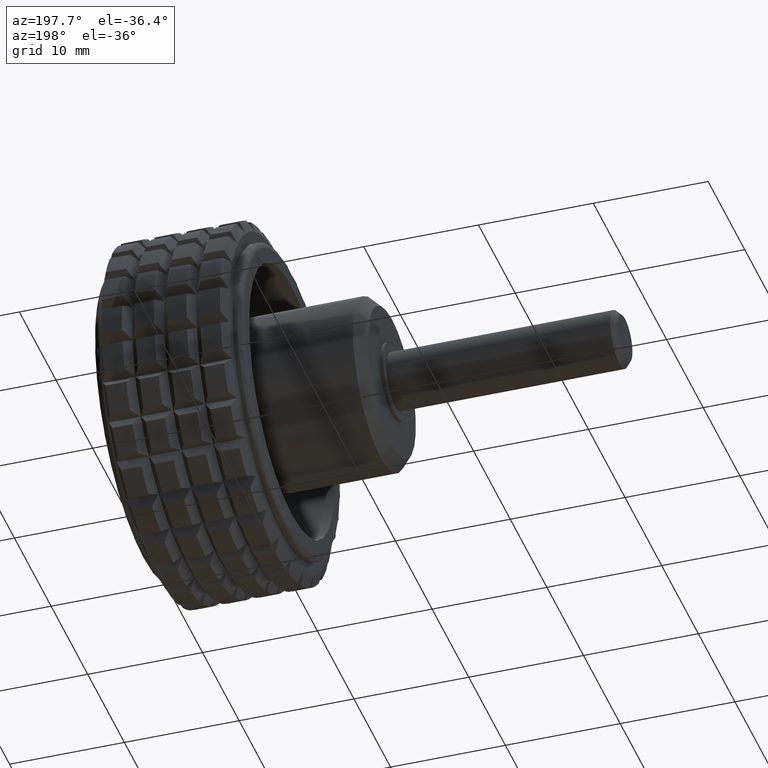
[diagram: clean part render]
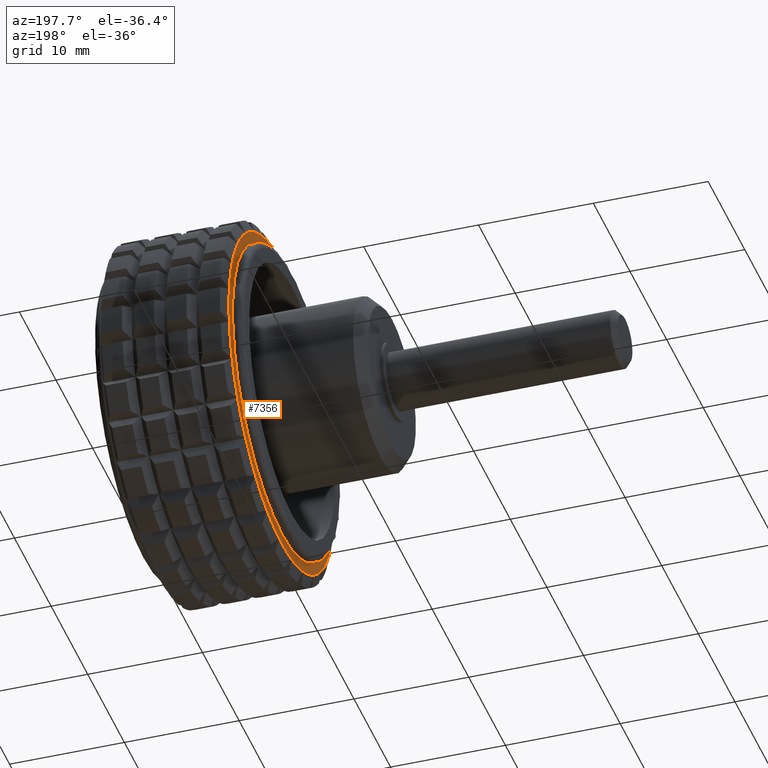
[diagram: same view with one face highlighted and labeled with its STEP entity id]
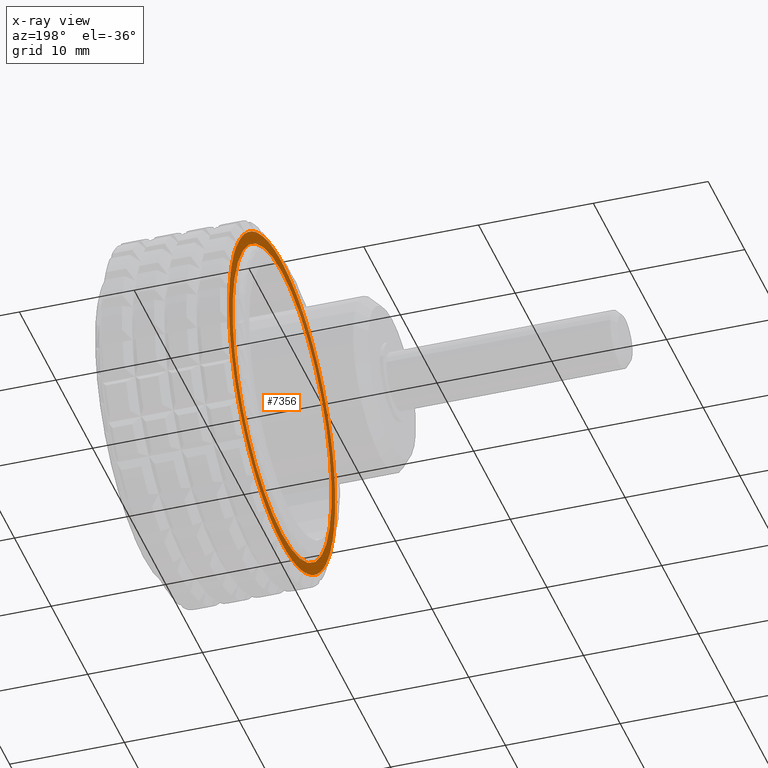
[diagram: x-ray of the same camera — body ghosted, the highlighted face saturated]
A machine part, auxiliary view. The second image highlights one B-rep face of the part: STEP entity #7356.
The next image is the same camera in x-ray: the body ghosted, the highlighted face saturated — about 18% of this face is hidden behind the body in this view.
In plain terms, the highlighted planar face has unit normal (1, 0, 0).
Its self-contained STEP definition (entity closure, byte-faithful):
#1446=FACE_BOUND('',#2213,.T.);
#1648=FACE_OUTER_BOUND('',#2212,.T.);
#2212=EDGE_LOOP('',(#5448,#5449,#5450,#5451,#5452,#5453,#5454,#5455,#5456,
#5457,#5458,#5459,#5460,#5461,#5462,#5463,#5464,#5465,#5466,#5467,#5468,
#5469,#5470,#5471,#5472,#5473,#5474));
#2213=EDGE_LOOP('',(#5475));
#2714=CIRCLE('',#8000,14.5);
#2727=CIRCLE('',#8029,14.5);
#2732=CIRCLE('',#8042,14.5);
#2733=CIRCLE('',#8044,14.5);
#2734=CIRCLE('',#8046,14.5);
#2736=CIRCLE('',#8049,14.5);
#2737=CIRCLE('',#8050,14.5);
#2738=CIRCLE('',#8051,14.5);
#2739=CIRCLE('',#8052,14.5);
#2740=CIRCLE('',#8053,14.5);
#2741=CIRCLE('',#8054,14.5);
#2742=CIRCLE('',#8055,14.5);
#2743=CIRCLE('',#8056,14.5);
#2744=CIRCLE('',#8057,14.5);
#2745=CIRCLE('',#8058,14.5);
#2746=CIRCLE('',#8059,14.5);
#2747=CIRCLE('',#8060,14.5);
#2748=CIRCLE('',#8061,14.5);
#2749=CIRCLE('',#8062,14.5);
#2750=CIRCLE('',#8063,14.5);
#2751=CIRCLE('',#8064,14.5);
#2752=CIRCLE('',#8065,14.5);
#2753=CIRCLE('',#8066,14.5);
#2754=CIRCLE('',#8067,14.5);
#2755=CIRCLE('',#8068,14.5);
#2756=CIRCLE('',#8069,14.5);
#2757=CIRCLE('',#8070,14.5);
#2758=CIRCLE('',#8071,13.5);
#3024=VERTEX_POINT('',#11068);
#3048=VERTEX_POINT('',#11184);
#3055=VERTEX_POINT('',#11231);
#3069=VERTEX_POINT('',#11293);
#3081=VERTEX_POINT('',#11353);
#3093=VERTEX_POINT('',#11404);
#3100=VERTEX_POINT('',#11436);
#3112=VERTEX_POINT('',#11485);
#3128=VERTEX_POINT('',#11558);
#3138=VERTEX_POINT('',#11602);
#3151=VERTEX_POINT('',#11661);
#3166=VERTEX_POINT('',#11727);
#3177=VERTEX_POINT('',#11782);
#3190=VERTEX_POINT('',#11838);
#3203=VERTEX_POINT('',#11897);
#3218=VERTEX_POINT('',#11963);
#3229=VERTEX_POINT('',#12015);
#3242=VERTEX_POINT('',#12074);
#3257=VERTEX_POINT('',#12140);
#3268=VERTEX_POINT('',#12192);
#3281=VERTEX_POINT('',#12251);
#3292=VERTEX_POINT('',#12302);
#3303=VERTEX_POINT('',#12354);
#3316=VERTEX_POINT('',#12413);
#3328=VERTEX_POINT('',#12471);
#3341=VERTEX_POINT('',#12543);
#3370=VERTEX_POINT('',#12748);
#3383=VERTEX_POINT('',#12847);
#4092=EDGE_CURVE('',#3069,#3081,#2714,.T.);
#4131=EDGE_CURVE('',#3055,#3024,#2727,.T.);
#4156=EDGE_CURVE('',#3316,#3370,#2732,.T.);
#4159=EDGE_CURVE('',#3100,#3069,#2733,.T.);
#4160=EDGE_CURVE('',#3024,#3048,#2734,.T.);
#4163=EDGE_CURVE('',#3048,#3328,#2736,.T.);
#4164=EDGE_CURVE('',#3341,#3055,#2737,.T.);
#4165=EDGE_CURVE('',#3370,#3341,#2738,.T.);
#4166=EDGE_CURVE('',#3303,#3316,#2739,.T.);
#4167=EDGE_CURVE('',#3281,#3303,#2740,.T.);
#4168=EDGE_CURVE('',#3268,#3281,#2741,.T.);
#4169=EDGE_CURVE('',#3242,#3268,#2742,.T.);
#4170=EDGE_CURVE('',#3229,#3242,#2743,.T.);
#4171=EDGE_CURVE('',#3203,#3229,#2744,.T.);
#4172=EDGE_CURVE('',#3190,#3203,#2745,.T.);
#4173=EDGE_CURVE('',#3177,#3190,#2746,.T.);
#4174=EDGE_CURVE('',#3151,#3177,#2747,.T.);
#4175=EDGE_CURVE('',#3138,#3151,#2748,.T.);
#4176=EDGE_CURVE('',#3112,#3138,#2749,.T.);
#4177=EDGE_CURVE('',#3093,#3112,#2750,.T.);
#4178=EDGE_CURVE('',#3081,#3093,#2751,.T.);
#4179=EDGE_CURVE('',#3128,#3100,#2752,.T.);
#4180=EDGE_CURVE('',#3166,#3128,#2753,.T.);
#4181=EDGE_CURVE('',#3218,#3166,#2754,.T.);
#4182=EDGE_CURVE('',#3257,#3218,#2755,.T.);
#4183=EDGE_CURVE('',#3292,#3257,#2756,.T.);
#4184=EDGE_CURVE('',#3328,#3292,#2757,.T.);
#4185=EDGE_CURVE('',#3383,#3383,#2758,.T.);
#5448=ORIENTED_EDGE('',*,*,#4163,.F.);
#5449=ORIENTED_EDGE('',*,*,#4160,.F.);
#5450=ORIENTED_EDGE('',*,*,#4131,.F.);
#5451=ORIENTED_EDGE('',*,*,#4164,.F.);
#5452=ORIENTED_EDGE('',*,*,#4165,.F.);
#5453=ORIENTED_EDGE('',*,*,#4156,.F.);
#5454=ORIENTED_EDGE('',*,*,#4166,.F.);
#5455=ORIENTED_EDGE('',*,*,#4167,.F.);
#5456=ORIENTED_EDGE('',*,*,#4168,.F.);
#5457=ORIENTED_EDGE('',*,*,#4169,.F.);
#5458=ORIENTED_EDGE('',*,*,#4170,.F.);
#5459=ORIENTED_EDGE('',*,*,#4171,.F.);
#5460=ORIENTED_EDGE('',*,*,#4172,.F.);
#5461=ORIENTED_EDGE('',*,*,#4173,.F.);
#5462=ORIENTED_EDGE('',*,*,#4174,.F.);
#5463=ORIENTED_EDGE('',*,*,#4175,.F.);
#5464=ORIENTED_EDGE('',*,*,#4176,.F.);
#5465=ORIENTED_EDGE('',*,*,#4177,.F.);
#5466=ORIENTED_EDGE('',*,*,#4178,.F.);
#5467=ORIENTED_EDGE('',*,*,#4092,.F.);
#5468=ORIENTED_EDGE('',*,*,#4159,.F.);
#5469=ORIENTED_EDGE('',*,*,#4179,.F.);
#5470=ORIENTED_EDGE('',*,*,#4180,.F.);
#5471=ORIENTED_EDGE('',*,*,#4181,.F.);
#5472=ORIENTED_EDGE('',*,*,#4182,.F.);
#5473=ORIENTED_EDGE('',*,*,#4183,.F.);
#5474=ORIENTED_EDGE('',*,*,#4184,.F.);
#5475=ORIENTED_EDGE('',*,*,#4185,.T.);
#7070=PLANE('',#8048);
#7356=ADVANCED_FACE('',(#1648,#1446),#7070,.F.);
#8000=AXIS2_PLACEMENT_3D('',#12614,#9386,#9387);
#8029=AXIS2_PLACEMENT_3D('',#12722,#9458,#9459);
#8042=AXIS2_PLACEMENT_3D('',#12805,#9493,#9494);
#8044=AXIS2_PLACEMENT_3D('',#12815,#9497,#9498);
#8046=AXIS2_PLACEMENT_3D('',#12817,#9501,#9502);
#8048=AXIS2_PLACEMENT_3D('',#12824,#9505,#9506);
#8049=AXIS2_PLACEMENT_3D('',#12825,#9507,#9508);
#8050=AXIS2_PLACEMENT_3D('',#12826,#9509,#9510);
#8051=AXIS2_PLACEMENT_3D('',#12827,#9511,#9512);
#8052=AXIS2_PLACEMENT_3D('',#12828,#9513,#9514);
#8053=AXIS2_PLACEMENT_3D('',#12829,#9515,#9516);
#8054=AXIS2_PLACEMENT_3D('',#12830,#9517,#9518);
#8055=AXIS2_PLACEMENT_3D('',#12831,#9519,#9520);
#8056=AXIS2_PLACEMENT_3D('',#12832,#9521,#9522);
#8057=AXIS2_PLACEMENT_3D('',#12833,#9523,#9524);
#8058=AXIS2_PLACEMENT_3D('',#12834,#9525,#9526);
#8059=AXIS2_PLACEMENT_3D('',#12835,#9527,#9528);
#8060=AXIS2_PLACEMENT_3D('',#12836,#9529,#9530);
#8061=AXIS2_PLACEMENT_3D('',#12837,#9531,#9532);
#8062=AXIS2_PLACEMENT_3D('',#12838,#9533,#9534);
#8063=AXIS2_PLACEMENT_3D('',#12839,#9535,#9536);
#8064=AXIS2_PLACEMENT_3D('',#12840,#9537,#9538);
#8065=AXIS2_PLACEMENT_3D('',#12841,#9539,#9540);
#8066=AXIS2_PLACEMENT_3D('',#12842,#9541,#9542);
#8067=AXIS2_PLACEMENT_3D('',#12843,#9543,#9544);
#8068=AXIS2_PLACEMENT_3D('',#12844,#9545,#9546);
#8069=AXIS2_PLACEMENT_3D('',#12845,#9547,#9548);
#8070=AXIS2_PLACEMENT_3D('',#12846,#9549,#9550);
#8071=AXIS2_PLACEMENT_3D('',#12848,#9551,#9552);
#9386=DIRECTION('center_axis',(1.,0.,0.));
#9387=DIRECTION('ref_axis',(0.,0.,-1.));
#9458=DIRECTION('center_axis',(1.,0.,0.));
#9459=DIRECTION('ref_axis',(0.,0.,-1.));
#9493=DIRECTION('center_axis',(1.,0.,0.));
#9494=DIRECTION('ref_axis',(0.,0.,-1.));
#9497=DIRECTION('center_axis',(1.,0.,0.));
#9498=DIRECTION('ref_axis',(0.,0.,-1.));
#9501=DIRECTION('center_axis',(1.,0.,0.));
#9502=DIRECTION('ref_axis',(0.,0.,-1.));
#9505=DIRECTION('center_axis',(1.,0.,0.));
#9506=DIRECTION('ref_axis',(0.,0.,-1.));
#9507=DIRECTION('center_axis',(1.,0.,0.));
#9508=DIRECTION('ref_axis',(0.,0.,-1.));
#9509=DIRECTION('center_axis',(1.,0.,0.));
#9510=DIRECTION('ref_axis',(0.,0.,-1.));
#9511=DIRECTION('center_axis',(1.,0.,0.));
#9512=DIRECTION('ref_axis',(0.,0.,-1.));
#9513=DIRECTION('center_axis',(1.,0.,0.));
#9514=DIRECTION('ref_axis',(0.,0.,-1.));
#9515=DIRECTION('center_axis',(1.,0.,0.));
#9516=DIRECTION('ref_axis',(0.,0.,-1.));
#9517=DIRECTION('center_axis',(1.,0.,0.));
#9518=DIRECTION('ref_axis',(0.,0.,-1.));
#9519=DIRECTION('center_axis',(1.,0.,0.));
#9520=DIRECTION('ref_axis',(0.,0.,-1.));
#9521=DIRECTION('center_axis',(1.,0.,0.));
#9522=DIRECTION('ref_axis',(0.,0.,-1.));
#9523=DIRECTION('center_axis',(1.,0.,0.));
#9524=DIRECTION('ref_axis',(0.,0.,-1.));
#9525=DIRECTION('center_axis',(1.,0.,0.));
#9526=DIRECTION('ref_axis',(0.,0.,-1.));
#9527=DIRECTION('center_axis',(1.,0.,0.));
#9528=DIRECTION('ref_axis',(0.,0.,-1.));
#9529=DIRECTION('center_axis',(1.,0.,0.));
#9530=DIRECTION('ref_axis',(0.,0.,-1.));
#9531=DIRECTION('center_axis',(1.,0.,0.));
#9532=DIRECTION('ref_axis',(0.,0.,-1.));
#9533=DIRECTION('center_axis',(1.,0.,0.));
#9534=DIRECTION('ref_axis',(0.,0.,-1.));
#9535=DIRECTION('center_axis',(1.,0.,0.));
#9536=DIRECTION('ref_axis',(0.,0.,-1.));
#9537=DIRECTION('center_axis',(1.,0.,0.));
#9538=DIRECTION('ref_axis',(0.,0.,-1.));
#9539=DIRECTION('center_axis',(1.,0.,0.));
#9540=DIRECTION('ref_axis',(0.,0.,-1.));
#9541=DIRECTION('center_axis',(1.,0.,0.));
#9542=DIRECTION('ref_axis',(0.,0.,-1.));
#9543=DIRECTION('center_axis',(1.,0.,0.));
#9544=DIRECTION('ref_axis',(0.,0.,-1.));
#9545=DIRECTION('center_axis',(1.,0.,0.));
#9546=DIRECTION('ref_axis',(0.,0.,-1.));
#9547=DIRECTION('center_axis',(1.,0.,0.));
#9548=DIRECTION('ref_axis',(0.,0.,-1.));
#9549=DIRECTION('center_axis',(1.,0.,0.));
#9550=DIRECTION('ref_axis',(0.,0.,-1.));
#9551=DIRECTION('center_axis',(1.,0.,0.));
#9552=DIRECTION('ref_axis',(0.,0.,-1.));
#11068=CARTESIAN_POINT('',(9.88,13.6255430013957,-4.95929207822219));
#11184=CARTESIAN_POINT('',(9.88,14.4019561872582,-1.68334725481584));
#11231=CARTESIAN_POINT('',(9.88,12.1145732654876,-7.96788018202668));
#11293=CARTESIAN_POINT('',(9.88,-2.51789857617049,14.279712418677));
#11353=CARTESIAN_POINT('',(9.88,-5.74315660756777,13.314133549764));
#11404=CARTESIAN_POINT('',(9.88,-8.6587995796904,11.6307862949481));
#11436=CARTESIAN_POINT('',(9.88,0.843100019201899,14.4754682949334));
#11485=CARTESIAN_POINT('',(9.88,-11.1076444252252,9.32042034045482));
#11558=CARTESIAN_POINT('',(9.88,4.15864687431081,13.8908479285746));
#11602=CARTESIAN_POINT('',(9.88,-12.9576732846895,6.5075881129067));
#11661=CARTESIAN_POINT('',(9.88,-14.1091506234074,3.34393012576538));
#11727=CARTESIAN_POINT('',(9.88,7.25,12.5573683548744));
#11782=CARTESIAN_POINT('',(9.88,-14.5,4.33680868994202E-16));
#11838=CARTESIAN_POINT('',(9.88,-14.1091506234074,-3.34393012576538));
#11897=CARTESIAN_POINT('',(9.88,-12.9576732846895,-6.5075881129067));
#11963=CARTESIAN_POINT('',(9.88,9.95050374909663,10.5469178028092));
#12015=CARTESIAN_POINT('',(9.88,-11.1076444252252,-9.32042034045481));
#12074=CARTESIAN_POINT('',(9.88,-8.65879957969039,-11.6307862949481));
#12140=CARTESIAN_POINT('',(9.88,12.1145732654876,7.96788018202669));
#12192=CARTESIAN_POINT('',(9.88,-5.74315660756777,-13.314133549764));
#12251=CARTESIAN_POINT('',(9.88,-2.51789857617049,-14.279712418677));
#12302=CARTESIAN_POINT('',(9.88,13.6255430013957,4.9592920782222));
#12354=CARTESIAN_POINT('',(9.88,0.843100019201898,-14.4754682949334));
#12413=CARTESIAN_POINT('',(9.88,4.1586468743108,-13.8908479285746));
#12471=CARTESIAN_POINT('',(9.88,14.4019561872582,1.68334725481584));
#12543=CARTESIAN_POINT('',(9.88,9.95050374909663,-10.5469178028092));
#12614=CARTESIAN_POINT('Origin',(9.88,0.,0.));
#12722=CARTESIAN_POINT('Origin',(9.88,0.,0.));
#12748=CARTESIAN_POINT('',(9.88,7.24999999999999,-12.5573683548744));
#12805=CARTESIAN_POINT('Origin',(9.88,0.,0.));
#12815=CARTESIAN_POINT('Origin',(9.88,0.,0.));
#12817=CARTESIAN_POINT('Origin',(9.88,0.,0.));
#12824=CARTESIAN_POINT('Origin',(9.88,13.5,0.));
#12825=CARTESIAN_POINT('Origin',(9.88,0.,0.));
#12826=CARTESIAN_POINT('Origin',(9.88,0.,0.));
#12827=CARTESIAN_POINT('Origin',(9.88,0.,0.));
#12828=CARTESIAN_POINT('Origin',(9.88,0.,0.));
#12829=CARTESIAN_POINT('Origin',(9.88,0.,0.));
#12830=CARTESIAN_POINT('Origin',(9.88,0.,0.));
#12831=CARTESIAN_POINT('Origin',(9.88,0.,0.));
#12832=CARTESIAN_POINT('Origin',(9.88,0.,0.));
#12833=CARTESIAN_POINT('Origin',(9.88,0.,0.));
#12834=CARTESIAN_POINT('Origin',(9.88,0.,0.));
#12835=CARTESIAN_POINT('Origin',(9.88,0.,0.));
#12836=CARTESIAN_POINT('Origin',(9.88,0.,0.));
#12837=CARTESIAN_POINT('Origin',(9.88,0.,0.));
#12838=CARTESIAN_POINT('Origin',(9.88,0.,0.));
#12839=CARTESIAN_POINT('Origin',(9.88,0.,0.));
#12840=CARTESIAN_POINT('Origin',(9.88,0.,0.));
#12841=CARTESIAN_POINT('Origin',(9.88,0.,0.));
#12842=CARTESIAN_POINT('Origin',(9.88,0.,0.));
#12843=CARTESIAN_POINT('Origin',(9.88,0.,0.));
#12844=CARTESIAN_POINT('Origin',(9.88,0.,0.));
#12845=CARTESIAN_POINT('Origin',(9.88,0.,0.));
#12846=CARTESIAN_POINT('Origin',(9.88,0.,0.));
#12847=CARTESIAN_POINT('',(9.88,0.,-13.5));
#12848=CARTESIAN_POINT('Origin',(9.88,0.,0.));